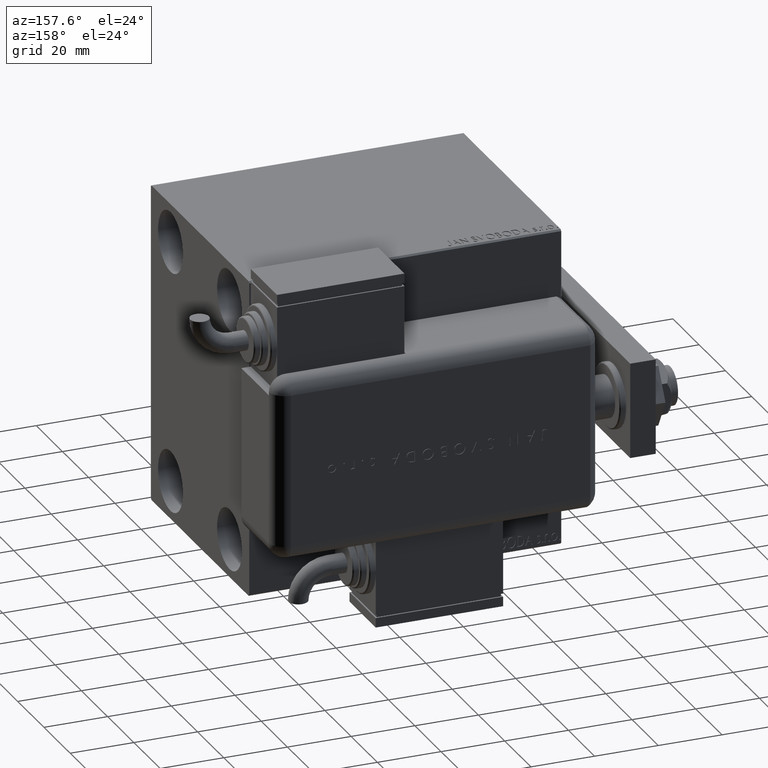
[diagram: clean part render]
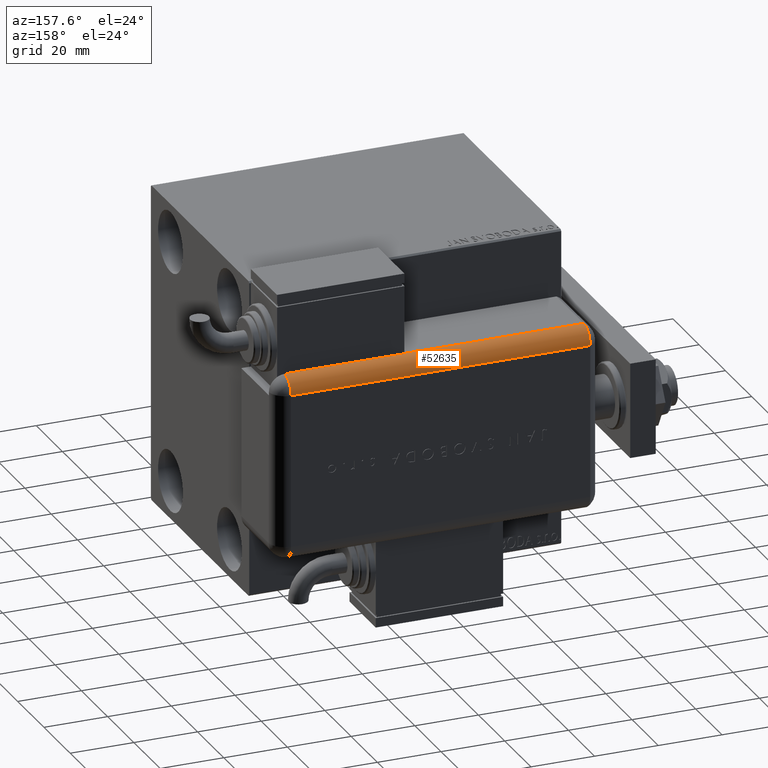
[diagram: same view with one face highlighted and labeled with its STEP entity id]
A machine part, auxiliary view. The second image highlights one B-rep face of the part: STEP entity #52635.
In plain terms, the highlighted cylindrical surface (edge-blend (fillet) strip) has radius 5 mm, axis along (1, -0, -0).
Its self-contained STEP definition (entity closure, byte-faithful):
#882 = DIRECTION ( 'NONE',  ( -1.000000000000000000, 0.000000000000000000, 0.000000000000000000 ) ) ;
#1506 = CYLINDRICAL_SURFACE ( 'NONE', #42519, 5.000000000000000888 ) ;
#1797 = CARTESIAN_POINT ( 'NONE',  ( 23.99999999999999289, 20.79999999999998295, 99.00000000000000000 ) ) ;
#3687 = ORIENTED_EDGE ( 'NONE', *, *, #14286, .F. ) ;
#4724 = LINE ( 'NONE', #40603, #5997 ) ;
#5997 = VECTOR ( 'NONE', #27356, 1000.000000000000000 ) ;
#6414 = ORIENTED_EDGE ( 'NONE', *, *, #55400, .T. ) ;
#7010 = CARTESIAN_POINT ( 'NONE',  ( 28.99999999999999645, 20.79999999999998295, 99.00000000000000000 ) ) ;
#9922 = CARTESIAN_POINT ( 'NONE',  ( 23.99999999999999289, 20.79999999999998295, 5.000000000000004441 ) ) ;
#10781 = CIRCLE ( 'NONE', #30091, 5.000000000000000888 ) ;
#12373 = CIRCLE ( 'NONE', #48953, 5.000000000000000888 ) ;
#14286 = EDGE_CURVE ( 'NONE', #39465, #52310, #25078, .T. ) ;
#15799 = EDGE_CURVE ( 'NONE', #50318, #19672, #4724, .T. ) ;
#17429 = DIRECTION ( 'NONE',  ( -0.000000000000000000, -0.000000000000000000, 1.000000000000000000 ) ) ;
#18013 = CARTESIAN_POINT ( 'NONE',  ( 23.99999999999999289, 20.79999999999998295, 99.00000000000000000 ) ) ;
#18583 = AXIS2_PLACEMENT_3D ( 'NONE', #18013, #17429, #31027 ) ;
#19672 = VERTEX_POINT ( 'NONE', #29314 ) ;
#20874 = VECTOR ( 'NONE', #40387, 1000.000000000000000 ) ;
#21128 = EDGE_CURVE ( 'NONE', #52310, #50318, #49439, .T. ) ;
#25078 = LINE ( 'NONE', #7010, #54114 ) ;
#25386 = DIRECTION ( 'NONE',  ( -0.000000000000000000, -0.000000000000000000, 1.000000000000000000 ) ) ;
#25875 = CARTESIAN_POINT ( 'NONE',  ( 28.99999999999999645, 20.79999999999998295, 43.00000000000000000 ) ) ;
#26839 = CARTESIAN_POINT ( 'NONE',  ( 28.99599839871871154, 20.99999999999998224, 99.00000000000000000 ) ) ;
#27356 = DIRECTION ( 'NONE',  ( 0.000000000000000000, 0.000000000000000000, -1.000000000000000000 ) ) ;
#28938 = DIRECTION ( 'NONE',  ( 0.000000000000000000, 0.000000000000000000, -1.000000000000000000 ) ) ;
#29314 = CARTESIAN_POINT ( 'NONE',  ( 23.99999999999999289, 25.79999999999998295, 5.000000000000004441 ) ) ;
#30010 = CARTESIAN_POINT ( 'NONE',  ( 28.99999999999999645, 20.79999999999998295, 99.00000000000000000 ) ) ;
#30091 = AXIS2_PLACEMENT_3D ( 'NONE', #9922, #42191, #882 ) ;
#31027 = DIRECTION ( 'NONE',  ( -1.000000000000000000, 0.000000000000000000, 0.000000000000000000 ) ) ;
#31170 = EDGE_CURVE ( 'NONE', #54539, #50132, #49449, .T. ) ;
#36464 = CARTESIAN_POINT ( 'NONE',  ( 23.99999999999999289, 20.79999999999998295, 43.00000000000000000 ) ) ;
#36780 = ORIENTED_EDGE ( 'NONE', *, *, #41897, .F. ) ;
#39465 = VERTEX_POINT ( 'NONE', #25875 ) ;
#40387 = DIRECTION ( 'NONE',  ( -0.000000000000000000, -0.000000000000000000, 1.000000000000000000 ) ) ;
#40603 = CARTESIAN_POINT ( 'NONE',  ( 23.99999999999999289, 25.79999999999998295, 99.00000000000000000 ) ) ;
#41897 = EDGE_CURVE ( 'NONE', #50132, #39465, #12373, .T. ) ;
#42191 = DIRECTION ( 'NONE',  ( -0.000000000000000000, -0.000000000000000000, 1.000000000000000000 ) ) ;
#42519 = AXIS2_PLACEMENT_3D ( 'NONE', #1797, #28938, #51552 ) ;
#42798 = FACE_OUTER_BOUND ( 'NONE', #50525, .T. ) ;
#46691 = DIRECTION ( 'NONE',  ( -0.000000000000000000, 0.000000000000000000, -1.000000000000000000 ) ) ;
#48953 = AXIS2_PLACEMENT_3D ( 'NONE', #36464, #46691, #50618 ) ;
#49439 = CIRCLE ( 'NONE', #18583, 5.000000000000000888 ) ;
#49449 = LINE ( 'NONE', #26839, #20874 ) ;
#50132 = VERTEX_POINT ( 'NONE', #54066 ) ;
#50318 = VERTEX_POINT ( 'NONE', #57307 ) ;
#50474 = ORIENTED_EDGE ( 'NONE', *, *, #31170, .F. ) ;
#50525 = EDGE_LOOP ( 'NONE', ( #36780, #50474, #6414, #52709, #54305, #3687 ) ) ;
#50618 = DIRECTION ( 'NONE',  ( 1.000000000000000000, -6.383782391594648845E-14, 0.000000000000000000 ) ) ;
#51552 = DIRECTION ( 'NONE',  ( -1.000000000000000000, 0.000000000000000000, 0.000000000000000000 ) ) ;
#52310 = VERTEX_POINT ( 'NONE', #30010 ) ;
#52635 = ADVANCED_FACE ( 'NONE', ( #42798 ), #1506, .T. ) ;
#52709 = ORIENTED_EDGE ( 'NONE', *, *, #15799, .F. ) ;
#54066 = CARTESIAN_POINT ( 'NONE',  ( 28.99599839871871154, 20.99999999999999289, 43.00000000000000000 ) ) ;
#54114 = VECTOR ( 'NONE', #25386, 1000.000000000000000 ) ;
#54305 = ORIENTED_EDGE ( 'NONE', *, *, #21128, .F. ) ;
#54539 = VERTEX_POINT ( 'NONE', #57557 ) ;
#55400 = EDGE_CURVE ( 'NONE', #54539, #19672, #10781, .T. ) ;
#57307 = CARTESIAN_POINT ( 'NONE',  ( 23.99999999999999289, 25.79999999999998295, 99.00000000000000000 ) ) ;
#57557 = CARTESIAN_POINT ( 'NONE',  ( 28.99599839871871154, 21.00000000000000000, 5.000000000000004441 ) ) ;